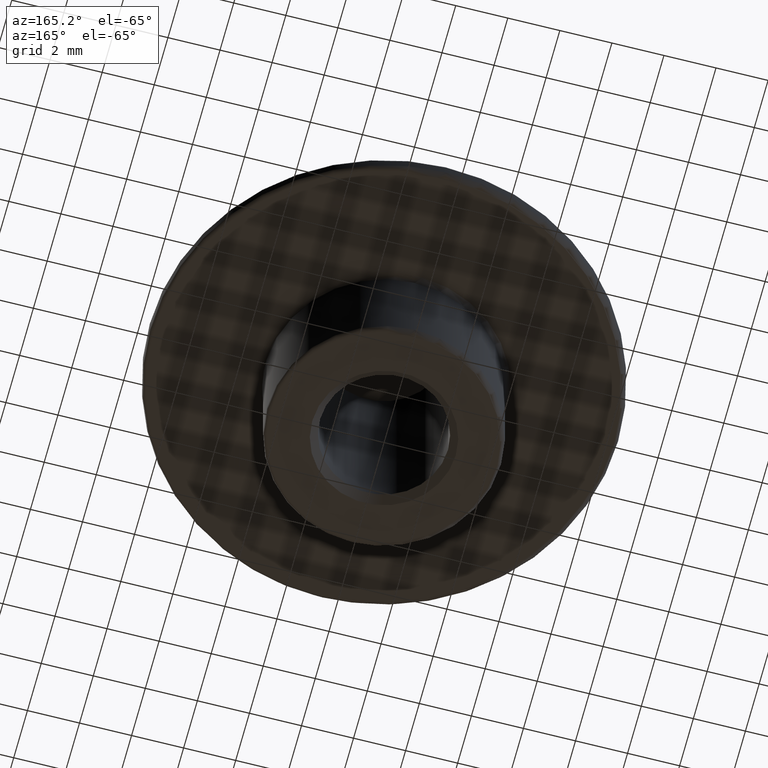
[diagram: clean part render]
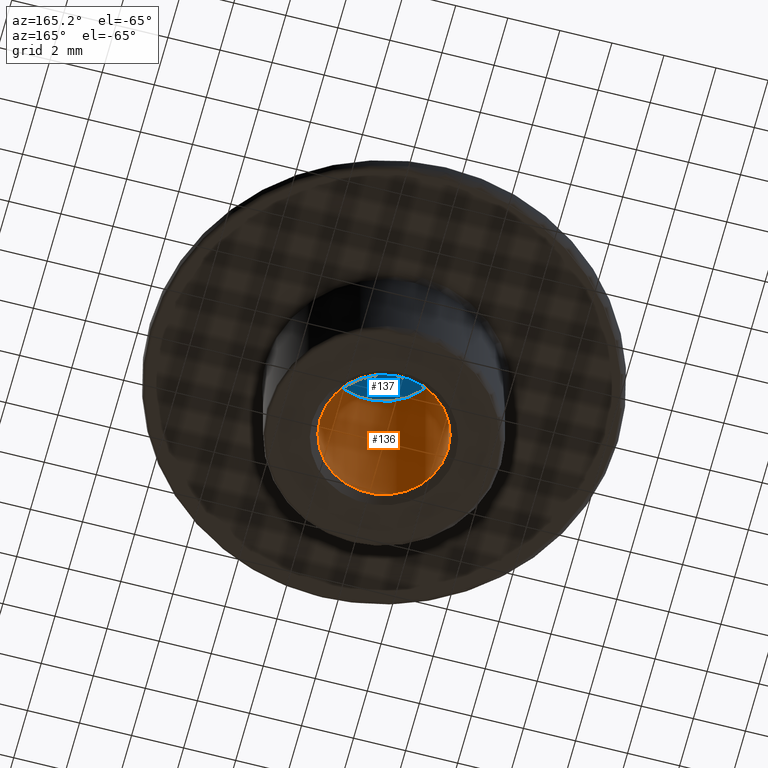
[diagram: same view with the hole feature highlighted: cylindrical wall and planar end face, labeled with their STEP entity ids]
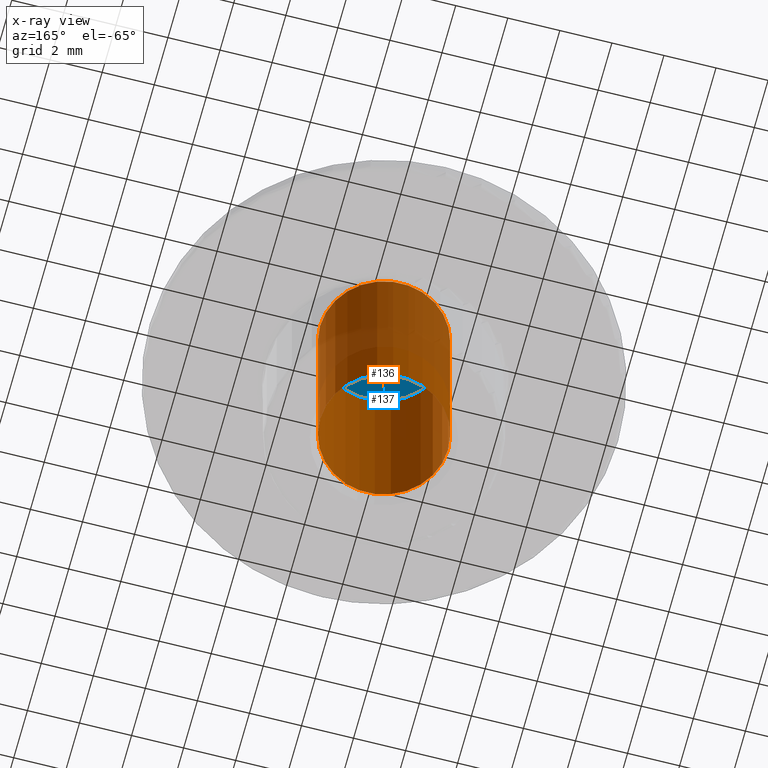
[diagram: x-ray of the same camera — body ghosted, the hole faces saturated]
A machine part, auxiliary view. The highlighted faces form one hole feature of diameter 4.917 mm: the cylindrical wall (entity #136, orange) and its adjacent planar end face (entity #137, blue) — they share a circular edge in the B-rep.
The next image is the same camera in x-ray (body ghosted, the hole faces saturated) — the bore reads through the body.
Wall:
#22=CYLINDRICAL_SURFACE('',#160,2.4585);
#32=FACE_BOUND('',#65,.T.);
#43=FACE_OUTER_BOUND('',#64,.T.);
#64=EDGE_LOOP('',(#119));
#65=EDGE_LOOP('',(#120));
#76=CIRCLE('',#159,2.4585);
#77=CIRCLE('',#161,2.4585);
#87=VERTEX_POINT('',#240);
#88=VERTEX_POINT('',#243);
#98=EDGE_CURVE('',#87,#87,#76,.T.);
#99=EDGE_CURVE('',#88,#88,#77,.T.);
#119=ORIENTED_EDGE('',*,*,#99,.F.);
#120=ORIENTED_EDGE('',*,*,#98,.F.);
#136=ADVANCED_FACE('',(#43,#32),#22,.F.);
#159=AXIS2_PLACEMENT_3D('',#241,#203,#204);
#160=AXIS2_PLACEMENT_3D('',#242,#205,#206);
#161=AXIS2_PLACEMENT_3D('',#244,#207,#208);
#203=DIRECTION('center_axis',(0.,0.,1.));
#204=DIRECTION('ref_axis',(1.,0.,0.));
#205=DIRECTION('center_axis',(0.,0.,-1.));
#206=DIRECTION('ref_axis',(-1.,0.,0.));
#207=DIRECTION('center_axis',(0.,0.,-1.));
#208=DIRECTION('ref_axis',(-1.,0.,0.));
#240=CARTESIAN_POINT('',(-2.4585,-3.01079415570377E-16,2.3));
#241=CARTESIAN_POINT('Origin',(0.,0.,2.3));
#242=CARTESIAN_POINT('Origin',(0.,0.,6.25));
#243=CARTESIAN_POINT('',(-2.4585,0.,10.5));
#244=CARTESIAN_POINT('Origin',(0.,0.,10.5));
End face:
#18=PLANE('',#162);
#44=FACE_OUTER_BOUND('',#66,.T.);
#66=EDGE_LOOP('',(#121));
#77=CIRCLE('',#161,2.4585);
#88=VERTEX_POINT('',#243);
#99=EDGE_CURVE('',#88,#88,#77,.T.);
#121=ORIENTED_EDGE('',*,*,#99,.T.);
#137=ADVANCED_FACE('',(#44),#18,.T.);
#161=AXIS2_PLACEMENT_3D('',#244,#207,#208);
#162=AXIS2_PLACEMENT_3D('',#245,#209,#210);
#207=DIRECTION('center_axis',(0.,0.,-1.));
#208=DIRECTION('ref_axis',(-1.,0.,0.));
#209=DIRECTION('center_axis',(0.,0.,-1.));
#210=DIRECTION('ref_axis',(-1.,0.,0.));
#243=CARTESIAN_POINT('',(-2.4585,0.,10.5));
#244=CARTESIAN_POINT('Origin',(0.,0.,10.5));
#245=CARTESIAN_POINT('Origin',(0.,0.,10.5));